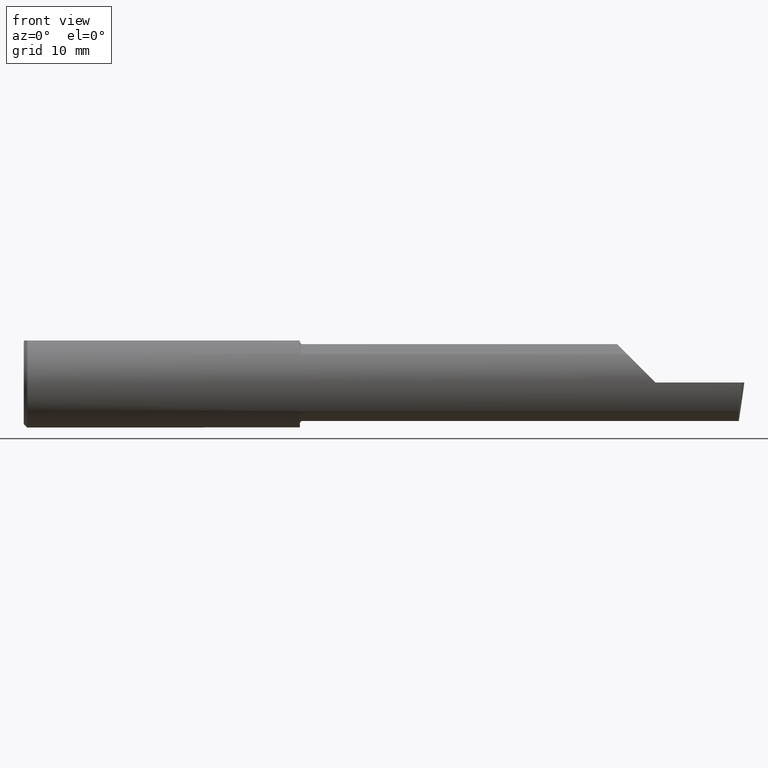
[diagram: clean part render]
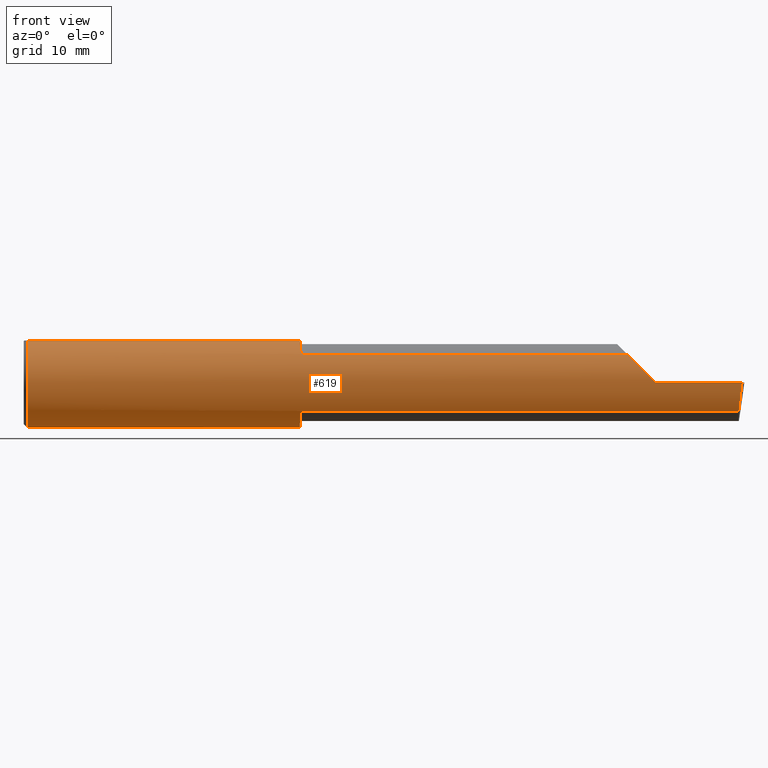
[diagram: same view with one face highlighted and labeled with its STEP entity id]
A machine part, front view. The second image highlights one B-rep face of the part: STEP entity #619.
In plain terms, the highlighted cylindrical surface (partial cylindrical patch) has radius 4.7587 mm, axis along (-1, -0, -0).
Its self-contained STEP definition (entity closure, byte-faithful):
#4 = CARTESIAN_POINT ( 'NONE',  ( 0.01499999999999999424, 0.000000000000000000, 0.000000000000000000 ) ) ;
#5 = B_SPLINE_CURVE_WITH_KNOTS ( 'NONE', 3,
 ( #565, #140, #30, #34, #359, #465, #229, #321, #415, #214, #185, #450, #136, #560 ),
 .UNSPECIFIED., .F., .F.,
 ( 4, 2, 2, 2, 2, 2, 4 ),
 ( 0.0006605532644857246925, 0.001446564801351223669, 0.001839570569783973699, 0.002036073454000349690, 0.002134324896108538011, 0.002183450617162631738, 0.002232576338216725898 ),
 .UNSPECIFIED. ) ;
#7 = EDGE_CURVE ( 'NONE', #287, #353, #276, .T. ) ;
#12 = CARTESIAN_POINT ( 'NONE',  ( 1.154992410154055626, -0.1399157128067689548, -0.1246181391956558832 ) ) ;
#15 = DIRECTION ( 'NONE',  ( 0.000000000000000000, 0.000000000000000000, 1.000000000000000000 ) ) ;
#16 = EDGE_CURVE ( 'NONE', #204, #550, #150, .T. ) ;
#21 = VERTEX_POINT ( 'NONE', #183 ) ;
#26 = CARTESIAN_POINT ( 'NONE',  ( 0.000000000000000000, 0.000000000000000000, 0.000000000000000000 ) ) ;
#27 = CARTESIAN_POINT ( 'NONE',  ( 2.985293537526806595, -0.1873499999999999888, -0.04340998088356423645 ) ) ;
#30 = CARTESIAN_POINT ( 'NONE',  ( 1.150493306168247853, -0.1180879943980271130, 0.1458023451353276934 ) ) ;
#31 = ORIENTED_EDGE ( 'NONE', *, *, #451, .F. ) ;
#34 = CARTESIAN_POINT ( 'NONE',  ( 1.152149571221040114, -0.1293863363941691047, 0.1355911774285935012 ) ) ;
#36 = AXIS2_PLACEMENT_3D ( 'NONE', #274, #264, #178 ) ;
#38 = DIRECTION ( 'NONE',  ( 1.000000000000000000, 0.000000000000000000, 0.000000000000000000 ) ) ;
#44 = DIRECTION ( 'NONE',  ( -1.000000000000000000, -0.000000000000000000, -0.000000000000000000 ) ) ;
#47 = LINE ( 'NONE', #197, #118 ) ;
#59 = ORIENTED_EDGE ( 'NONE', *, *, #7, .T. ) ;
#60 = DIRECTION ( 'NONE',  ( -1.000000000000000000, -0.000000000000000000, -0.000000000000000000 ) ) ;
#63 = CARTESIAN_POINT ( 'NONE',  ( 1.150000000000000133, -0.1013606951871667550, -0.1575627873933888867 ) ) ;
#68 = ORIENTED_EDGE ( 'NONE', *, *, #139, .F. ) ;
#76 = VERTEX_POINT ( 'NONE', #164 ) ;
#77 = FACE_OUTER_BOUND ( 'NONE', #472, .T. ) ;
#82 = CARTESIAN_POINT ( 'NONE',  ( 2.990625440078235275, -0.1873499999999999888, -6.696573958807120429E-17 ) ) ;
#84 = VERTEX_POINT ( 'NONE', #603 ) ;
#86 = LINE ( 'NONE', #552, #207 ) ;
#92 = CARTESIAN_POINT ( 'NONE',  ( 2.511965325165093521, -0.1454917112299465853, 0.1180346748349052760 ) ) ;
#98 = VECTOR ( 'NONE', #414, 39.37007874015748143 ) ;
#103 = B_SPLINE_CURVE_WITH_KNOTS ( 'NONE', 3,
 ( #388, #205, #346, #543, #394, #297, #584, #12, #292, #163, #384, #339, #111, #63 ),
 .UNSPECIFIED., .F., .F.,
 ( 4, 2, 2, 2, 2, 2, 4 ),
 ( 1.967643395620002325E-07, 5.001319782656137654E-05, 9.982963131356075023E-05, 0.0001994624982875594840, 0.0003987282322355602585, 0.0007972597001315618074, 0.001594322635923565989 ),
 .UNSPECIFIED. ) ;
#105 = EDGE_CURVE ( 'NONE', #21, #353, #115, .T. ) ;
#108 = EDGE_CURVE ( 'NONE', #499, #425, #5, .T. ) ;
#111 = CARTESIAN_POINT ( 'NONE',  ( 1.150000000000000355, -0.1099295023601660481, -0.1520504436074701926 ) ) ;
#115 = CIRCLE ( 'NONE', #36, 0.1873499999999999888 ) ;
#118 = VECTOR ( 'NONE', #367, 39.37007874015748143 ) ;
#120 = ORIENTED_EDGE ( 'NONE', *, *, #218, .F. ) ;
#124 = ORIENTED_EDGE ( 'NONE', *, *, #323, .T. ) ;
#135 = CARTESIAN_POINT ( 'NONE',  ( 2.977223734188810145, -0.1454917112299468074, -0.1180346748349050540 ) ) ;
#136 = CARTESIAN_POINT ( 'NONE',  ( 1.159343186359710121, -0.1454917112302233917, 0.1180346748345658947 ) ) ;
#139 = EDGE_CURVE ( 'NONE', #425, #550, #86, .T. ) ;
#140 = CARTESIAN_POINT ( 'NONE',  ( 1.150000000000000133, -0.1100056335683322478, 0.1520014681335473961 ) ) ;
#141 = VERTEX_POINT ( 'NONE', #517 ) ;
#143 = ORIENTED_EDGE ( 'NONE', *, *, #538, .F. ) ;
#146 = DIRECTION ( 'NONE',  ( -1.000000000000000000, -0.000000000000000000, -0.000000000000000000 ) ) ;
#150 =( BOUNDED_CURVE ( )  B_SPLINE_CURVE ( 3, ( #417, #572, #526, #92 ),
 .UNSPECIFIED., .F., .T. ) 
 B_SPLINE_CURVE_WITH_KNOTS ( ( 4, 4 ),
 ( 4.712388980384689674, 5.393970886271887366 ),
 .UNSPECIFIED. ) 
 CURVE ( )  GEOMETRIC_REPRESENTATION_ITEM ( )  RATIONAL_B_SPLINE_CURVE ( ( 1.000000000000000000, 0.9616603987079549443, 0.9616603987079549443, 1.000000000000000000 ) ) 
 REPRESENTATION_ITEM ( '' )  );
#163 = CARTESIAN_POINT ( 'NONE',  ( 1.152858161161656181, -0.1330631366558205908, -0.1319833113027339688 ) ) ;
#164 = CARTESIAN_POINT ( 'NONE',  ( 0.01499999999999999424, 0.000000000000000000, -0.1873499999999999888 ) ) ;
#166 = CARTESIAN_POINT ( 'NONE',  ( 1.160000000000000142, -0.1454917112299473902, 0.1180346748349042768 ) ) ;
#175 = EDGE_CURVE ( 'NONE', #541, #334, #374, .T. ) ;
#178 = DIRECTION ( 'NONE',  ( 0.000000000000000000, 1.000000000000000000, 0.000000000000000000 ) ) ;
#183 = CARTESIAN_POINT ( 'NONE',  ( 1.150000000000000133, -0.1013606951871667550, -0.1575627873933888867 ) ) ;
#185 = CARTESIAN_POINT ( 'NONE',  ( 1.157921033727479010, -0.1445976381173504355, 0.1191292621734205831 ) ) ;
#187 = CARTESIAN_POINT ( 'NONE',  ( 0.01499999999999999424, 0.000000000000000000, 0.000000000000000000 ) ) ;
#194 = CARTESIAN_POINT ( 'NONE',  ( 1.150000000000000133, 0.06597272163553680180, 0.1753499999999999781 ) ) ;
#197 = CARTESIAN_POINT ( 'NONE',  ( 0.000000000000000000, -0.06597272163553671853, 0.1753499999999999226 ) ) ;
#204 = VERTEX_POINT ( 'NONE', #407 ) ;
#205 = CARTESIAN_POINT ( 'NONE',  ( 1.159335809113331450, -0.1454917112299472515, -0.1180346748349044989 ) ) ;
#207 = VECTOR ( 'NONE', #224, 39.37007874015748143 ) ;
#211 = EDGE_CURVE ( 'NONE', #345, #141, #47, .T. ) ;
#214 = CARTESIAN_POINT ( 'NONE',  ( 1.157580800664965714, -0.1442412736056278566, 0.1195608849622512987 ) ) ;
#215 = AXIS2_PLACEMENT_3D ( 'NONE', #4, #60, #15 ) ;
#218 = EDGE_CURVE ( 'NONE', #345, #499, #532, .T. ) ;
#220 = DIRECTION ( 'NONE',  ( -1.000000000000000000, -0.000000000000000000, -0.000000000000000000 ) ) ;
#224 = DIRECTION ( 'NONE',  ( 1.000000000000000000, -5.691349986800549142E-18, 0.000000000000000000 ) ) ;
#229 = CARTESIAN_POINT ( 'NONE',  ( 1.154997648858496984, -0.1399294360413342042, 0.1246027428089586525 ) ) ;
#244 = DIRECTION ( 'NONE',  ( 0.000000000000000000, 0.000000000000000000, 1.000000000000000000 ) ) ;
#258 = ORIENTED_EDGE ( 'NONE', *, *, #16, .T. ) ;
#263 = CARTESIAN_POINT ( 'NONE',  ( 1.909999999999999920, -0.1454917112299468074, -0.1180346748349050540 ) ) ;
#264 = DIRECTION ( 'NONE',  ( 1.000000000000000000, -5.691349986800549142E-18, 0.000000000000000000 ) ) ;
#272 = LINE ( 'NONE', #263, #98 ) ;
#274 = CARTESIAN_POINT ( 'NONE',  ( 1.150000000000000133, 0.000000000000000000, 0.000000000000000000 ) ) ;
#276 = LINE ( 'NONE', #281, #495 ) ;
#280 = EDGE_CURVE ( 'NONE', #287, #76, #328, .T. ) ;
#281 = CARTESIAN_POINT ( 'NONE',  ( 0.000000000000000000, 0.06597272163553677404, 0.1753499999999999226 ) ) ;
#287 = VERTEX_POINT ( 'NONE', #568 ) ;
#290 = CARTESIAN_POINT ( 'NONE',  ( 1.150000000000000133, 0.000000000000000000, 0.000000000000000000 ) ) ;
#292 = CARTESIAN_POINT ( 'NONE',  ( 1.154404192622242142, -0.1382376748423456703, -0.1264781021717274467 ) ) ;
#297 = CARTESIAN_POINT ( 'NONE',  ( 1.156664569472227955, -0.1431262185210695759, -0.1208975608635225463 ) ) ;
#310 = CARTESIAN_POINT ( 'NONE',  ( 2.511965325165093521, -0.1454917112299465853, 0.1180346748349052760 ) ) ;
#321 = CARTESIAN_POINT ( 'NONE',  ( 1.156216587669451235, -0.1423502170013176138, 0.1218111458006537057 ) ) ;
#323 = EDGE_CURVE ( 'NONE', #334, #204, #576, .T. ) ;
#328 = CIRCLE ( 'NONE', #392, 0.1873499999999999888 ) ;
#334 = VERTEX_POINT ( 'NONE', #537 ) ;
#339 = CARTESIAN_POINT ( 'NONE',  ( 1.150483388365424187, -0.1180160148311112794, -0.1458664675357409513 ) ) ;
#345 = VERTEX_POINT ( 'NONE', #531 ) ;
#346 = CARTESIAN_POINT ( 'NONE',  ( 1.158770022656896659, -0.1452078353828897828, -0.1183847404910792489 ) ) ;
#353 = VERTEX_POINT ( 'NONE', #194 ) ;
#359 = CARTESIAN_POINT ( 'NONE',  ( 1.152845212421890642, -0.1330145888620369587, 0.1320338710448769326 ) ) ;
#367 = DIRECTION ( 'NONE',  ( -1.000000000000000000, -0.000000000000000000, -0.000000000000000000 ) ) ;
#369 = CIRCLE ( 'NONE', #215, 0.1873499999999999888 ) ;
#370 = AXIS2_PLACEMENT_3D ( 'NONE', #26, #220, #406 ) ;
#371 = ORIENTED_EDGE ( 'NONE', *, *, #105, .F. ) ;
#374 =( BOUNDED_CURVE ( )  B_SPLINE_CURVE ( 3, ( #563, #404, #27, #82 ),
 .UNSPECIFIED., .F., .T. ) 
 B_SPLINE_CURVE_WITH_KNOTS ( ( 4, 4 ),
 ( 0.6791649766275641431, 1.360746882514759726 ),
 .UNSPECIFIED. ) 
 CURVE ( )  GEOMETRIC_REPRESENTATION_ITEM ( )  RATIONAL_B_SPLINE_CURVE ( ( 1.000000000000000000, 0.9616603987079550553, 0.9616603987079550553, 1.000000000000000000 ) ) 
 REPRESENTATION_ITEM ( '' )  );
#384 = CARTESIAN_POINT ( 'NONE',  ( 1.152152469637250709, -0.1294082664154932449, -0.1355718222394677042 ) ) ;
#388 = CARTESIAN_POINT ( 'NONE',  ( 1.160000000000000142, -0.1454917112299473902, -0.1180346748349042768 ) ) ;
#392 = AXIS2_PLACEMENT_3D ( 'NONE', #187, #44, #244 ) ;
#394 = CARTESIAN_POINT ( 'NONE',  ( 1.157567572594822014, -0.1442269357022595289, -0.1195781817710020872 ) ) ;
#404 = CARTESIAN_POINT ( 'NONE',  ( 2.980648201915111262, -0.1728409665178088084, -0.08432347972837168915 ) ) ;
#406 = DIRECTION ( 'NONE',  ( 0.000000000000000000, 0.000000000000000000, 1.000000000000000000 ) ) ;
#407 = CARTESIAN_POINT ( 'NONE',  ( 2.629999999999999893, -0.1873499999999999888, -1.592040838891560883E-17 ) ) ;
#414 = DIRECTION ( 'NONE',  ( -1.000000000000000000, 5.691349986800549142E-18, -0.000000000000000000 ) ) ;
#415 = CARTESIAN_POINT ( 'NONE',  ( 1.156674049009441818, -0.1431412424162813724, 0.1208797671938516005 ) ) ;
#417 = CARTESIAN_POINT ( 'NONE',  ( 2.629999999999999893, -0.1873499999999999888, -1.592040838891560883E-17 ) ) ;
#419 = CARTESIAN_POINT ( 'NONE',  ( 5.044671737413194975E-32, -0.1873499999999999610, 3.563723795045361633E-16 ) ) ;
#425 = VERTEX_POINT ( 'NONE', #166 ) ;
#450 = CARTESIAN_POINT ( 'NONE',  ( 1.158780002058964254, -0.1452129146512420033, 0.1183784924451689036 ) ) ;
#451 = EDGE_CURVE ( 'NONE', #76, #141, #369, .T. ) ;
#460 = ORIENTED_EDGE ( 'NONE', *, *, #211, .T. ) ;
#465 = CARTESIAN_POINT ( 'NONE',  ( 1.154402240695038939, -0.1382337250035453602, 0.1264828452200225661 ) ) ;
#467 = EDGE_CURVE ( 'NONE', #84, #21, #103, .T. ) ;
#472 = EDGE_LOOP ( 'NONE', ( #143, #586, #124, #258, #68, #509, #120, #460, #31, #489, #59, #371, #601 ) ) ;
#489 = ORIENTED_EDGE ( 'NONE', *, *, #280, .F. ) ;
#495 = VECTOR ( 'NONE', #38, 39.37007874015748143 ) ;
#499 = VERTEX_POINT ( 'NONE', #583 ) ;
#509 = ORIENTED_EDGE ( 'NONE', *, *, #108, .F. ) ;
#517 = CARTESIAN_POINT ( 'NONE',  ( 0.01499999999999997863, -0.06597272163553657975, 0.1753499999999999781 ) ) ;
#524 = DIRECTION ( 'NONE',  ( 0.000000000000000000, 1.000000000000000000, 0.000000000000000000 ) ) ;
#526 = CARTESIAN_POINT ( 'NONE',  ( 2.545676520271627385, -0.1728409665178087251, 0.08432347972837181405 ) ) ;
#531 = CARTESIAN_POINT ( 'NONE',  ( 1.150000000000000133, -0.06597272163553659363, 0.1753499999999999781 ) ) ;
#532 = CIRCLE ( 'NONE', #593, 0.1873499999999999888 ) ;
#537 = CARTESIAN_POINT ( 'NONE',  ( 2.990625440078235275, -0.1873499999999999888, -6.696573958807120429E-17 ) ) ;
#538 = EDGE_CURVE ( 'NONE', #541, #84, #272, .T. ) ;
#541 = VERTEX_POINT ( 'NONE', #135 ) ;
#543 = CARTESIAN_POINT ( 'NONE',  ( 1.157909242887170453, -0.1445870704379424998, -0.1191421054870949042 ) ) ;
#550 = VERTEX_POINT ( 'NONE', #310 ) ;
#552 = CARTESIAN_POINT ( 'NONE',  ( 1.909999999999999920, -0.1454917112299468074, 0.1180346748349050540 ) ) ;
#560 = CARTESIAN_POINT ( 'NONE',  ( 1.160000000000000142, -0.1454917112299473902, 0.1180346748349042768 ) ) ;
#563 = CARTESIAN_POINT ( 'NONE',  ( 2.977223734188810145, -0.1454917112299468074, -0.1180346748349050540 ) ) ;
#565 = CARTESIAN_POINT ( 'NONE',  ( 1.150000000000000133, -0.1013606951871667550, 0.1575627873933888867 ) ) ;
#568 = CARTESIAN_POINT ( 'NONE',  ( 0.01499999999999999424, 0.06597272163553677404, 0.1753499999999999226 ) ) ;
#572 = CARTESIAN_POINT ( 'NONE',  ( 2.586590019116435268, -0.1873499999999999610, 0.04340998088356424339 ) ) ;
#576 = LINE ( 'NONE', #419, #609 ) ;
#583 = CARTESIAN_POINT ( 'NONE',  ( 1.150000000000000133, -0.1013606951871667550, 0.1575627873933888867 ) ) ;
#584 = CARTESIAN_POINT ( 'NONE',  ( 1.156208682939483090, -0.1423361566194931982, -0.1218275716760972571 ) ) ;
#586 = ORIENTED_EDGE ( 'NONE', *, *, #175, .T. ) ;
#593 = AXIS2_PLACEMENT_3D ( 'NONE', #290, #615, #524 ) ;
#599 = CYLINDRICAL_SURFACE ( 'NONE', #370, 0.1873499999999999888 ) ;
#601 = ORIENTED_EDGE ( 'NONE', *, *, #467, .F. ) ;
#603 = CARTESIAN_POINT ( 'NONE',  ( 1.160000000000000142, -0.1454917112299473902, -0.1180346748349042768 ) ) ;
#609 = VECTOR ( 'NONE', #146, 39.37007874015748143 ) ;
#615 = DIRECTION ( 'NONE',  ( 1.000000000000000000, -5.691349986800549142E-18, 0.000000000000000000 ) ) ;
#619 = ADVANCED_FACE ( 'NONE', ( #77 ), #599, .T. ) ;